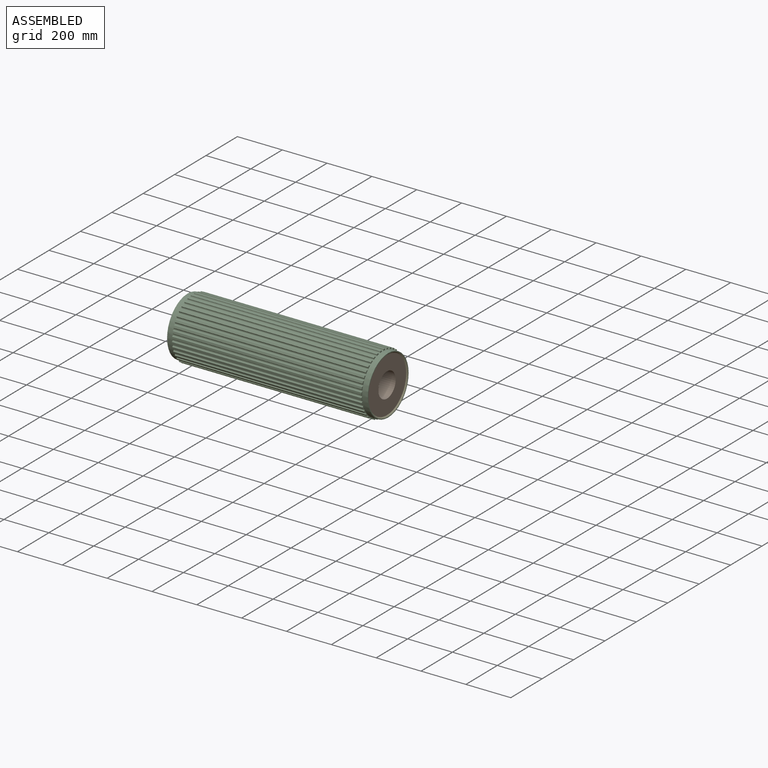
[diagram: assembled view]
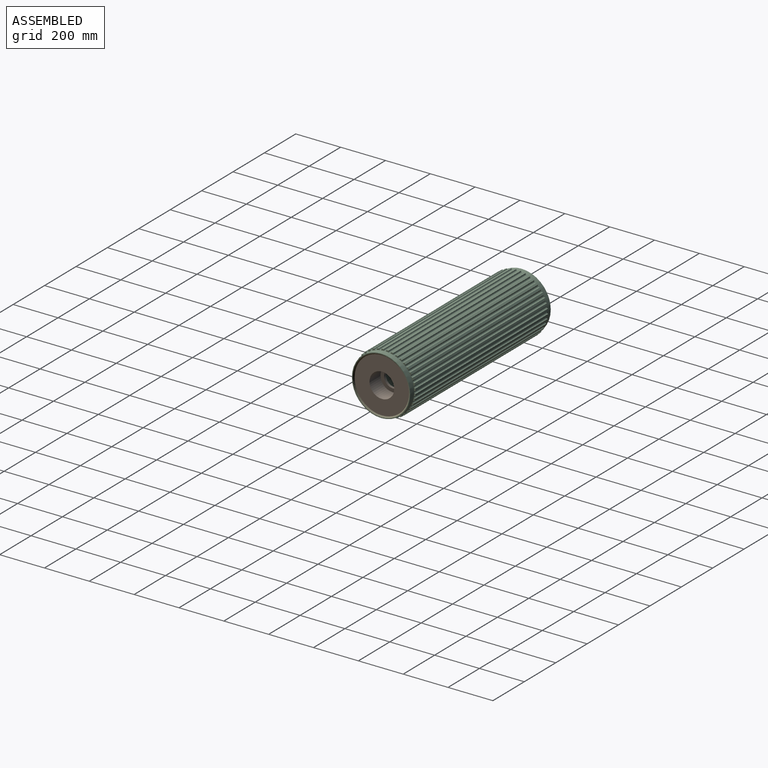
[diagram: assembled view, second angle]
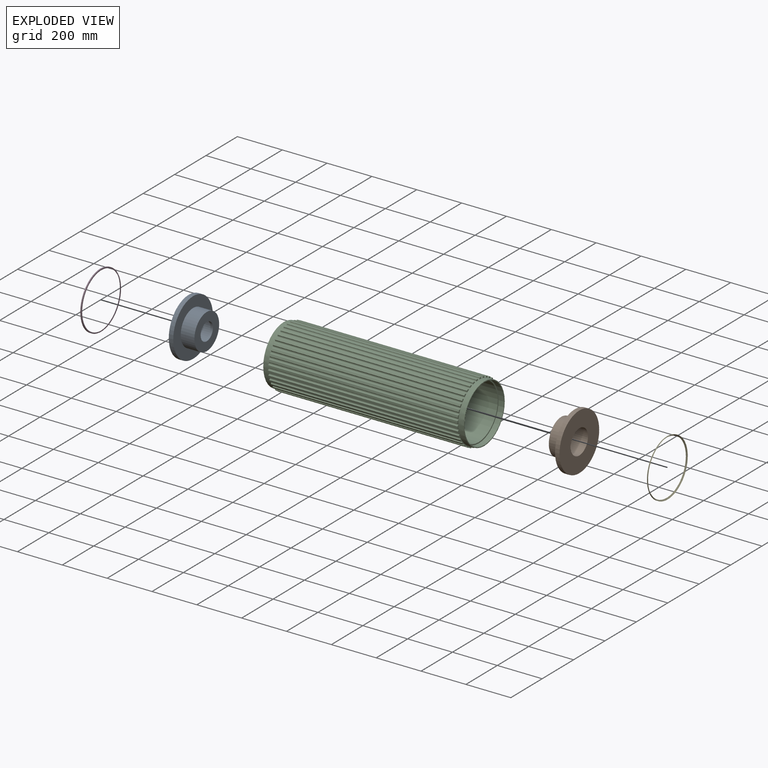
[diagram: exploded view]
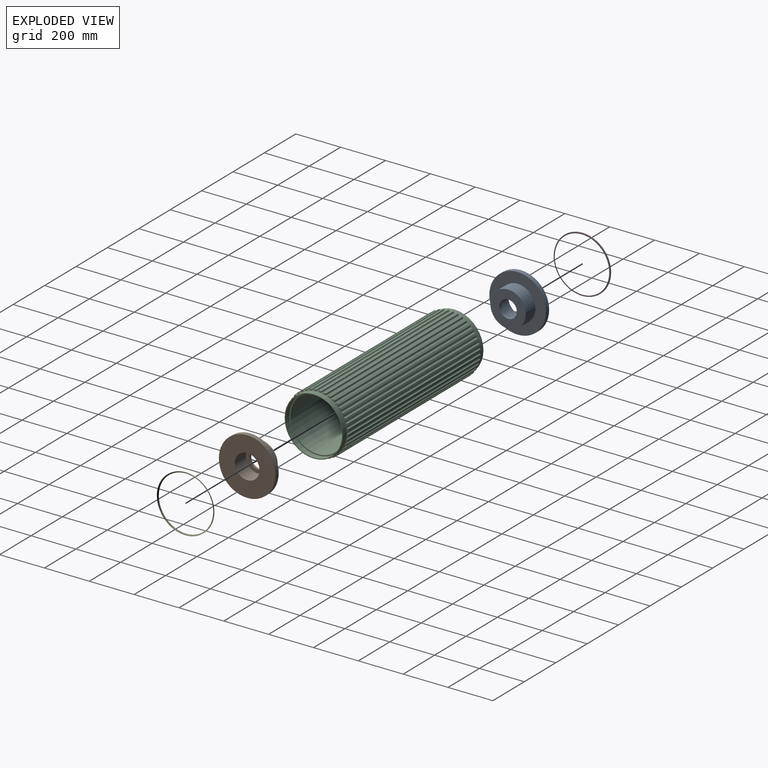
[diagram: exploded view, second angle]
ASSEMBLY  parts=5 mates=4
PART A: 8 faces, bbox 81x252.8x252.8 mm
  f0: cylinder r=55mm len=110mm, axis (1,0,0), area 24190.3mm2, adj f3,f5
  f1: cylinder r=126.41mm len=252.82mm, axis (1,0,0), area 15885.1mm2, adj f2,f3
  f2: plane 252.82x252.82mm, normal (-1,0,0), area 30594.4mm2, adj f1,f4
  f3: plane 252.82x252.82mm, normal (1,0,0), area 40697.7mm2, adj f0,f1
  f4: cylinder r=79mm len=158mm, axis (1,0,0), area 30278.7mm2, adj f2,f7
  f5: plane 110x110mm, normal (1,0,0), area 4725mm2, adj f0,f6
  f6: cylinder r=39mm len=78mm, axis (1,0,0), area 2695.5mm2, adj f5,f7
  f7: plane 158x158mm, normal (-1,0,0), area 14828.3mm2, adj f4,f6
PART B: same geometry as A
PART C: 249 faces, bbox 895x272.7x272.7 mm
  f0: plane 252.82x252.82mm, normal (-1,0,0), area 3892.7mm2, adj f239,f246
  f1: plane 20.34x7.97mm, normal (-1,0,0), area 74mm2, adj f83,f84,f85,f86,f87,f247
  f2: plane 19.84x10.11mm, normal (-1,0,0), area 74mm2, adj f80,f81,f82,f83,f240,f247
  f3: plane 18.85x12mm, normal (-1,0,0), area 74mm2, adj f235,f236,f237,f238,f240,f247
  f4: plane 17.39x13.6mm, normal (-1,0,0), area 74mm2, adj f231,f232,f233,f234,f235,f247
  f5: plane 15.76x14.86mm, normal (-1,0,0), area 74mm2, adj f227,f228,f229,f230,f231,f247
  f6: plane 15.76x14.86mm, normal (-1,0,0), area 74mm2, adj f223,f224,f225,f226,f227,f247
  f7: plane 17.39x13.6mm, normal (-1,0,0), area 74mm2, adj f219,f220,f221,f222,f223,f247
  f8: plane 18.85x12mm, normal (-1,0,0), area 74mm2, adj f215,f216,f217,f218,f219,f247
  f9: plane 19.84x10.11mm, normal (-1,0,0), area 74mm2, adj f211,f212,f213,f214,f215,f247
  f10: plane 20.34x7.97mm, normal (-1,0,0), area 74mm2, adj f207,f208,f209,f210,f211,f247
  f11: plane 20.34x7.97mm, normal (-1,0,0), area 74mm2, adj f203,f204,f205,f206,f207,f247
  f12: plane 19.84x10.11mm, normal (-1,0,0), area 74mm2, adj f199,f200,f201,f202,f203,f247
  f13: plane 18.85x12mm, normal (-1,0,0), area 74mm2, adj f195,f196,f197,f198,f199,f247
  f14: plane 17.39x13.6mm, normal (-1,0,0), area 74mm2, adj f191,f192,f193,f194,f195,f247
  f15: plane 15.76x14.86mm, normal (-1,0,0), area 74mm2, adj f187,f188,f189,f190,f191,f247
  f16: plane 15.76x14.86mm, normal (-1,0,0), area 74mm2, adj f183,f184,f185,f186,f187,f247
  f17: plane 17.39x13.6mm, normal (-1,0,0), area 74mm2, adj f179,f180,f181,f182,f183,f247
  f18: plane 18.85x12mm, normal (-1,0,0), area 74mm2, adj f175,f176,f177,f178,f179,f247
  f19: plane 19.84x10.11mm, normal (-1,0,0), area 74mm2, adj f171,f172,f173,f174,f175,f247
  f20: plane 20.34x7.97mm, normal (-1,0,0), area 74mm2, adj f167,f168,f169,f170,f171,f247
  f21: plane 20.34x7.97mm, normal (-1,0,0), area 74mm2, adj f163,f164,f165,f166,f167,f247
  f22: plane 19.84x10.11mm, normal (-1,0,0), area 74mm2, adj f159,f160,f161,f162,f163,f247
  f23: plane 18.85x12mm, normal (-1,0,0), area 74mm2, adj f155,f156,f157,f158,f159,f247
  f24: plane 17.39x13.6mm, normal (-1,0,0), area 74mm2, adj f151,f152,f153,f154,f155,f247
  f25: plane 15.76x14.86mm, normal (-1,0,0), area 74mm2, adj f147,f148,f149,f150,f151,f247
  f26: plane 15.76x14.86mm, normal (-1,0,0), area 74mm2, adj f143,f144,f145,f146,f147,f247
  f27: plane 17.39x13.6mm, normal (-1,0,0), area 74mm2, adj f139,f140,f141,f142,f143,f247
  f28: plane 18.85x12mm, normal (-1,0,0), area 74mm2, adj f135,f136,f137,f138,f139,f247
  f29: plane 19.84x10.11mm, normal (-1,0,0), area 74mm2, adj f131,f132,f133,f134,f135,f247
  f30: plane 20.34x7.97mm, normal (-1,0,0), area 74mm2, adj f127,f128,f129,f130,f131,f247
  f31: plane 20.34x7.97mm, normal (-1,0,0), area 74mm2, adj f123,f124,f125,f126,f127,f247
  f32: plane 19.84x10.11mm, normal (-1,0,0), area 74mm2, adj f119,f120,f121,f122,f123,f247
  f33: plane 18.85x12mm, normal (-1,0,0), area 74mm2, adj f115,f116,f117,f118,f119,f247
  f34: plane 17.39x13.6mm, normal (-1,0,0), area 74mm2, adj f111,f112,f113,f114,f115,f247
  f35: plane 15.76x14.86mm, normal (-1,0,0), area 74mm2, adj f107,f108,f109,f110,f111,f247
  f36: plane 15.76x14.86mm, normal (-1,0,0), area 74mm2, adj f103,f104,f105,f106,f107,f247
  f37: plane 17.39x13.6mm, normal (-1,0,0), area 74mm2, adj f99,f100,f101,f102,f103,f247
  f38: plane 18.85x12mm, normal (-1,0,0), area 74mm2, adj f95,f96,f97,f98,f99,f247
  f39: plane 19.84x10.11mm, normal (-1,0,0), area 74mm2, adj f91,f92,f93,f94,f95,f247
  f40: plane 252.82x252.82mm, normal (1,0,0), area 3892.7mm2, adj f239,f243
  f41: plane 20.34x7.97mm, normal (1,0,0), area 74mm2, adj f83,f84,f85,f86,f87,f244
  f42: plane 19.84x10.11mm, normal (1,0,0), area 74mm2, adj f80,f81,f82,f83,f240,f244
  f43: plane 18.85x12mm, normal (1,0,0), area 74mm2, adj f235,f236,f237,f238,f240,f244
  f44: plane 17.39x13.6mm, normal (1,0,0), area 74mm2, adj f231,f232,f233,f234,f235,f244
  f45: plane 15.76x14.86mm, normal (1,0,0), area 74mm2, adj f227,f228,f229,f230,f231,f244
  f46: plane 15.76x14.86mm, normal (1,0,0), area 74mm2, adj f223,f224,f225,f226,f227,f244
  f47: plane 17.39x13.6mm, normal (1,0,0), area 74mm2, adj f219,f220,f221,f222,f223,f244
  f48: plane 18.85x12mm, normal (1,0,0), area 74mm2, adj f215,f216,f217,f218,f219,f244
  f49: plane 19.84x10.11mm, normal (1,0,0), area 74mm2, adj f211,f212,f213,f214,f215,f244
  f50: plane 20.34x7.97mm, normal (1,0,0), area 74mm2, adj f207,f208,f209,f210,f211,f244
  f51: plane 20.34x7.97mm, normal (1,0,0), area 74mm2, adj f203,f204,f205,f206,f207,f244
  f52: plane 19.84x10.11mm, normal (1,0,0), area 74mm2, adj f199,f200,f201,f202,f203,f244
  f53: plane 18.85x12mm, normal (1,0,0), area 74mm2, adj f195,f196,f197,f198,f199,f244
  f54: plane 17.39x13.6mm, normal (1,0,0), area 74mm2, adj f191,f192,f193,f194,f195,f244
  f55: plane 15.76x14.86mm, normal (1,0,0), area 74mm2, adj f187,f188,f189,f190,f191,f244
  f56: plane 15.76x14.86mm, normal (1,0,0), area 74mm2, adj f183,f184,f185,f186,f187,f244
  f57: plane 17.39x13.6mm, normal (1,0,0), area 74mm2, adj f179,f180,f181,f182,f183,f244
  f58: plane 18.85x12mm, normal (1,0,0), area 74mm2, adj f175,f176,f177,f178,f179,f244
  f59: plane 19.84x10.11mm, normal (1,0,0), area 74mm2, adj f171,f172,f173,f174,f175,f244
  f60: plane 20.34x7.97mm, normal (1,0,0), area 74mm2, adj f167,f168,f169,f170,f171,f244
  f61: plane 20.34x7.97mm, normal (1,0,0), area 74mm2, adj f163,f164,f165,f166,f167,f244
  f62: plane 19.84x10.11mm, normal (1,0,0), area 74mm2, adj f159,f160,f161,f162,f163,f244
  f63: plane 18.85x12mm, normal (1,0,0), area 74mm2, adj f155,f156,f157,f158,f159,f244
  f64: plane 17.39x13.6mm, normal (1,0,0), area 74mm2, adj f151,f152,f153,f154,f155,f244
  f65: plane 15.76x14.86mm, normal (1,0,0), area 74mm2, adj f147,f148,f149,f150,f151,f244
  f66: plane 15.76x14.86mm, normal (1,0,0), area 74mm2, adj f143,f144,f145,f146,f147,f244
  f67: plane 17.39x13.6mm, normal (1,0,0), area 74mm2, adj f139,f140,f141,f142,f143,f244
  f68: plane 18.85x12mm, normal (1,0,0), area 74mm2, adj f135,f136,f137,f138,f139,f244
  f69: plane 19.84x10.11mm, normal (1,0,0), area 74mm2, adj f131,f132,f133,f134,f135,f244
  f70: plane 20.34x7.97mm, normal (1,0,0), area 74mm2, adj f127,f128,f129,f130,f131,f244
  f71: plane 20.34x7.97mm, normal (1,0,0), area 74mm2, adj f123,f124,f125,f126,f127,f244
  f72: plane 19.84x10.11mm, normal (1,0,0), area 74mm2, adj f119,f120,f121,f122,f123,f244
  f73: plane 18.85x12mm, normal (1,0,0), area 74mm2, adj f115,f116,f117,f118,f119,f244
  f74: plane 17.39x13.6mm, normal (1,0,0), area 74mm2, adj f111,f112,f113,f114,f115,f244
  f75: plane 15.76x14.86mm, normal (1,0,0), area 74mm2, adj f107,f108,f109,f110,f111,f244
  f76: plane 15.76x14.86mm, normal (1,0,0), area 74mm2, adj f103,f104,f105,f106,f107,f244
  f77: plane 17.39x13.6mm, normal (1,0,0), area 74mm2, adj f99,f100,f101,f102,f103,f244
  f78: plane 18.85x12mm, normal (1,0,0), area 74mm2, adj f95,f96,f97,f98,f99,f244
  f79: plane 19.84x10.11mm, normal (1,0,0), area 74mm2, adj f91,f92,f93,f94,f95,f244
  f80: plane 845x0.36mm, normal (0,-0.96,0.27), area 314.2mm2, adj f2,f42,f81,f240
  f81: cylinder r=136.5mm len=845mm, axis (-1,0,0), area 7947mm2, adj f2,f42,f80,f82
  f82: plane 845x0.36mm, normal (0,0.98,-0.2), area 314.2mm2, adj f2,f42,f81,f83
  f83: cylinder r=6mm len=845mm, axis (-1,0,0), area 15920.9mm2, adj f1,f2,f41,f42,f82,f84
  f84: plane 845x0.37mm, normal (0,-0.99,0.11), area 314.2mm2, adj f1,f41,f83,f85
  f85: cylinder r=136.5mm len=845mm, axis (-1,0,0), area 7947mm2, adj f1,f41,f84,f86
  f86: plane 845x0.37mm, normal (0,1,-0.04), area 314.2mm2, adj f1,f41,f85,f87
  f87: cylinder r=6mm len=845mm, axis (-1,0,0), area 15920.9mm2, adj f1,f41,f86,f88,f241,f242
  f88: plane 845x0.37mm, normal (0,-1,-0.04), area 314.2mm2, adj f87,f89,f241,f242
  f89: cylinder r=136.5mm len=845mm, axis (-1,0,0), area 7947mm2, adj f88,f90,f241,f242
  f90: plane 845x0.37mm, normal (0,0.99,0.11), area 314.2mm2, adj f89,f91,f241,f242
  f91: cylinder r=6mm len=845mm, axis (-1,0,0), area 15920.9mm2, adj f39,f79,f90,f92,f241,f242
  f92: plane 845x0.36mm, normal (0,-0.98,-0.2), area 314.2mm2, adj f39,f79,f91,f93
  f93: cylinder r=136.5mm len=845mm, axis (-1,0,0), area 7947mm2, adj f39,f79,f92,f94
  f94: plane 845x0.36mm, normal (0,0.96,0.27), area 314.2mm2, adj f39,f79,f93,f95
  f95: cylinder r=6mm len=845mm, axis (-1,0,0), area 15920.9mm2, adj f38,f39,f78,f79,f94,f96
  f96: plane 845x0.35mm, normal (0,-0.94,-0.35), area 314.2mm2, adj f38,f78,f95,f97
  f97: cylinder r=136.5mm len=845mm, axis (-1,0,0), area 7947mm2, adj f38,f78,f96,f98
  f98: plane 845x0.34mm, normal (0,0.91,0.41), area 314.2mm2, adj f38,f78,f97,f99
  f99: cylinder r=6mm len=845mm, axis (-1,0,0), area 15920.9mm2, adj f37,f38,f77,f78,f98,f100
  f100: plane 845x0.32mm, normal (0,-0.87,-0.49), area 314.2mm2, adj f37,f77,f99,f101
  f101: cylinder r=136.5mm len=845mm, axis (-1,0,0), area 7947mm2, adj f37,f77,f100,f102
  f102: plane 845x0.31mm, normal (0,0.83,0.55), area 314.2mm2, adj f37,f77,f101,f103
  f103: cylinder r=6mm len=845mm, axis (-1,0,0), area 15920.9mm2, adj f36,f37,f76,f77,f102,f104
  f104: plane 845x0.29mm, normal (0,-0.78,-0.62), area 314.2mm2, adj f36,f76,f103,f105
  f105: cylinder r=136.5mm len=845mm, axis (-1,0,0), area 7947mm2, adj f36,f76,f104,f106
  f106: plane 845x0.27mm, normal (0,0.74,0.68), area 314.2mm2, adj f36,f76,f105,f107
  f107: cylinder r=6mm len=845mm, axis (-1,0,0), area 15920.9mm2, adj f35,f36,f75,f76,f106,f108
  f108: plane 845x0.27mm, normal (0,-0.68,-0.74), area 314.2mm2, adj f35,f75,f107,f109
  f109: cylinder r=136.5mm len=845mm, axis (-1,0,0), area 7947mm2, adj f35,f75,f108,f110
  f110: plane 845x0.29mm, normal (0,0.62,0.78), area 314.2mm2, adj f35,f75,f109,f111
  f111: cylinder r=6mm len=845mm, axis (-1,0,0), area 15920.9mm2, adj f34,f35,f74,f75,f110,f112
  f112: plane 845x0.31mm, normal (0,-0.55,-0.83), area 314.2mm2, adj f34,f74,f111,f113
  f113: cylinder r=136.5mm len=845mm, axis (-1,0,0), area 7947mm2, adj f34,f74,f112,f114
  f114: plane 845x0.32mm, normal (0,0.49,0.87), area 314.2mm2, adj f34,f74,f113,f115
  f115: cylinder r=6mm len=845mm, axis (-1,0,0), area 15920.9mm2, adj f33,f34,f73,f74,f114,f116
  f116: plane 845x0.34mm, normal (0,-0.41,-0.91), area 314.2mm2, adj f33,f73,f115,f117
  f117: cylinder r=136.5mm len=845mm, axis (-1,0,0), area 7947mm2, adj f33,f73,f116,f118
  f118: plane 845x0.35mm, normal (0,0.35,0.94), area 314.2mm2, adj f33,f73,f117,f119
  f119: cylinder r=6mm len=845mm, axis (-1,0,0), area 15920.9mm2, adj f32,f33,f72,f73,f118,f120
  f120: plane 845x0.36mm, normal (0,-0.27,-0.96), area 314.2mm2, adj f32,f72,f119,f121
  f121: cylinder r=136.5mm len=845mm, axis (-1,0,0), area 7947mm2, adj f32,f72,f120,f122
  f122: plane 845x0.36mm, normal (0,0.2,0.98), area 314.2mm2, adj f32,f72,f121,f123
  f123: cylinder r=6mm len=845mm, axis (-1,0,0), area 15920.9mm2, adj f31,f32,f71,f72,f122,f124
  f124: plane 845x0.37mm, normal (0,-0.11,-0.99), area 314.2mm2, adj f31,f71,f123,f125
  f125: cylinder r=136.5mm len=845mm, axis (-1,0,0), area 7947mm2, adj f31,f71,f124,f126
  f126: plane 845x0.37mm, normal (0,0.04,1), area 314.2mm2, adj f31,f71,f125,f127
  f127: cylinder r=6mm len=845mm, axis (-1,0,0), area 15920.9mm2, adj f30,f31,f70,f71,f126,f128
  f128: plane 845x0.37mm, normal (0,0.04,-1), area 314.2mm2, adj f30,f70,f127,f129
  f129: cylinder r=136.5mm len=845mm, axis (-1,0,0), area 7947mm2, adj f30,f70,f128,f130
  f130: plane 845x0.37mm, normal (0,-0.11,0.99), area 314.2mm2, adj f30,f70,f129,f131
  f131: cylinder r=6mm len=845mm, axis (-1,0,0), area 15920.9mm2, adj f29,f30,f69,f70,f130,f132
  f132: plane 845x0.36mm, normal (0,0.2,-0.98), area 314.2mm2, adj f29,f69,f131,f133
  f133: cylinder r=136.5mm len=845mm, axis (-1,0,0), area 7947mm2, adj f29,f69,f132,f134
  f134: plane 845x0.36mm, normal (0,-0.27,0.96), area 314.2mm2, adj f29,f69,f133,f135
  f135: cylinder r=6mm len=845mm, axis (-1,0,0), area 15920.9mm2, adj f28,f29,f68,f69,f134,f136
  f136: plane 845x0.35mm, normal (0,0.35,-0.94), area 314.2mm2, adj f28,f68,f135,f137
  f137: cylinder r=136.5mm len=845mm, axis (-1,0,0), area 7947mm2, adj f28,f68,f136,f138
  f138: plane 845x0.34mm, normal (0,-0.41,0.91), area 314.2mm2, adj f28,f68,f137,f139
  f139: cylinder r=6mm len=845mm, axis (-1,0,0), area 15920.9mm2, adj f27,f28,f67,f68,f138,f140
  f140: plane 845x0.32mm, normal (0,0.49,-0.87), area 314.2mm2, adj f27,f67,f139,f141
  f141: cylinder r=136.5mm len=845mm, axis (-1,0,0), area 7947mm2, adj f27,f67,f140,f142
  f142: plane 845x0.31mm, normal (0,-0.55,0.83), area 314.2mm2, adj f27,f67,f141,f143
  f143: cylinder r=6mm len=845mm, axis (-1,0,0), area 15920.9mm2, adj f26,f27,f66,f67,f142,f144
  f144: plane 845x0.29mm, normal (0,0.62,-0.78), area 314.2mm2, adj f26,f66,f143,f145
  f145: cylinder r=136.5mm len=845mm, axis (-1,0,0), area 7947mm2, adj f26,f66,f144,f146
  f146: plane 845x0.27mm, normal (0,-0.68,0.74), area 314.2mm2, adj f26,f66,f145,f147
  f147: cylinder r=6mm len=845mm, axis (-1,0,0), area 15920.9mm2, adj f25,f26,f65,f66,f146,f148
  f148: plane 845x0.27mm, normal (0,0.74,-0.68), area 314.2mm2, adj f25,f65,f147,f149
  f149: cylinder r=136.5mm len=845mm, axis (-1,0,0), area 7947mm2, adj f25,f65,f148,f150
  f150: plane 845x0.29mm, normal (0,-0.78,0.62), area 314.2mm2, adj f25,f65,f149,f151
  f151: cylinder r=6mm len=845mm, axis (-1,0,0), area 15920.9mm2, adj f24,f25,f64,f65,f150,f152
  f152: plane 845x0.31mm, normal (0,0.83,-0.55), area 314.2mm2, adj f24,f64,f151,f153
  f153: cylinder r=136.5mm len=845mm, axis (-1,0,0), area 7947mm2, adj f24,f64,f152,f154
  f154: plane 845x0.32mm, normal (0,-0.87,0.49), area 314.2mm2, adj f24,f64,f153,f155
  f155: cylinder r=6mm len=845mm, axis (-1,0,0), area 15920.9mm2, adj f23,f24,f63,f64,f154,f156
  f156: plane 845x0.34mm, normal (0,0.91,-0.41), area 314.2mm2, adj f23,f63,f155,f157
  f157: cylinder r=136.5mm len=845mm, axis (-1,0,0), area 7947mm2, adj f23,f63,f156,f158
  f158: plane 845x0.35mm, normal (0,-0.94,0.35), area 314.2mm2, adj f23,f63,f157,f159
  f159: cylinder r=6mm len=845mm, axis (-1,0,0), area 15920.9mm2, adj f22,f23,f62,f63,f158,f160
  f160: plane 845x0.36mm, normal (0,0.96,-0.27), area 314.2mm2, adj f22,f62,f159,f161
  f161: cylinder r=136.5mm len=845mm, axis (-1,0,0), area 7947mm2, adj f22,f62,f160,f162
  f162: plane 845x0.36mm, normal (0,-0.98,0.2), area 314.2mm2, adj f22,f62,f161,f163
  f163: cylinder r=6mm len=845mm, axis (-1,0,0), area 15920.9mm2, adj f21,f22,f61,f62,f162,f164
  f164: plane 845x0.37mm, normal (0,0.99,-0.11), area 314.2mm2, adj f21,f61,f163,f165
  f165: cylinder r=136.5mm len=845mm, axis (-1,0,0), area 7947mm2, adj f21,f61,f164,f166
  f166: plane 845x0.37mm, normal (0,-1,0.04), area 314.2mm2, adj f21,f61,f165,f167
  f167: cylinder r=6mm len=845mm, axis (-1,0,0), area 15920.9mm2, adj f20,f21,f60,f61,f166,f168
  f168: plane 845x0.37mm, normal (0,1,0.04), area 314.2mm2, adj f20,f60,f167,f169
  f169: cylinder r=136.5mm len=845mm, axis (-1,0,0), area 7947mm2, adj f20,f60,f168,f170
  f170: plane 845x0.37mm, normal (0,-0.99,-0.11), area 314.2mm2, adj f20,f60,f169,f171
  f171: cylinder r=6mm len=845mm, axis (-1,0,0), area 15920.9mm2, adj f19,f20,f59,f60,f170,f172
  f172: plane 845x0.36mm, normal (0,0.98,0.2), area 314.2mm2, adj f19,f59,f171,f173
  f173: cylinder r=136.5mm len=845mm, axis (-1,0,0), area 7947mm2, adj f19,f59,f172,f174
  f174: plane 845x0.36mm, normal (0,-0.96,-0.27), area 314.2mm2, adj f19,f59,f173,f175
  f175: cylinder r=6mm len=845mm, axis (-1,0,0), area 15920.9mm2, adj f18,f19,f58,f59,f174,f176
  f176: plane 845x0.35mm, normal (0,0.94,0.35), area 314.2mm2, adj f18,f58,f175,f177
  f177: cylinder r=136.5mm len=845mm, axis (-1,0,0), area 7947mm2, adj f18,f58,f176,f178
  f178: plane 845x0.34mm, normal (0,-0.91,-0.41), area 314.2mm2, adj f18,f58,f177,f179
  f179: cylinder r=6mm len=845mm, axis (-1,0,0), area 15920.9mm2, adj f17,f18,f57,f58,f178,f180
  f180: plane 845x0.32mm, normal (0,0.87,0.49), area 314.2mm2, adj f17,f57,f179,f181
  f181: cylinder r=136.5mm len=845mm, axis (-1,0,0), area 7947mm2, adj f17,f57,f180,f182
  f182: plane 845x0.31mm, normal (0,-0.83,-0.55), area 314.2mm2, adj f17,f57,f181,f183
  f183: cylinder r=6mm len=845mm, axis (-1,0,0), area 15920.9mm2, adj f16,f17,f56,f57,f182,f184
  f184: plane 845x0.29mm, normal (0,0.78,0.62), area 314.2mm2, adj f16,f56,f183,f185
  f185: cylinder r=136.5mm len=845mm, axis (-1,0,0), area 7947mm2, adj f16,f56,f184,f186
  f186: plane 845x0.27mm, normal (0,-0.74,-0.68), area 314.2mm2, adj f16,f56,f185,f187
  f187: cylinder r=6mm len=845mm, axis (-1,0,0), area 15920.9mm2, adj f15,f16,f55,f56,f186,f188
  f188: plane 845x0.27mm, normal (0,0.68,0.74), area 314.2mm2, adj f15,f55,f187,f189
  f189: cylinder r=136.5mm len=845mm, axis (-1,0,0), area 7947mm2, adj f15,f55,f188,f190
  f190: plane 845x0.29mm, normal (0,-0.62,-0.78), area 314.2mm2, adj f15,f55,f189,f191
  f191: cylinder r=6mm len=845mm, axis (-1,0,0), area 15920.9mm2, adj f14,f15,f54,f55,f190,f192
  f192: plane 845x0.31mm, normal (0,0.55,0.83), area 314.2mm2, adj f14,f54,f191,f193
  f193: cylinder r=136.5mm len=845mm, axis (-1,0,0), area 7947mm2, adj f14,f54,f192,f194
  f194: plane 845x0.32mm, normal (0,-0.49,-0.87), area 314.2mm2, adj f14,f54,f193,f195
  f195: cylinder r=6mm len=845mm, axis (-1,0,0), area 15920.9mm2, adj f13,f14,f53,f54,f194,f196
  f196: plane 845x0.34mm, normal (0,0.41,0.91), area 314.2mm2, adj f13,f53,f195,f197
  f197: cylinder r=136.5mm len=845mm, axis (-1,0,0), area 7947mm2, adj f13,f53,f196,f198
  f198: plane 845x0.35mm, normal (0,-0.35,-0.94), area 314.2mm2, adj f13,f53,f197,f199
  f199: cylinder r=6mm len=845mm, axis (-1,0,0), area 15920.9mm2, adj f12,f13,f52,f53,f198,f200
  f200: plane 845x0.36mm, normal (0,0.27,0.96), area 314.2mm2, adj f12,f52,f199,f201
  f201: cylinder r=136.5mm len=845mm, axis (-1,0,0), area 7947mm2, adj f12,f52,f200,f202
  f202: plane 845x0.36mm, normal (0,-0.2,-0.98), area 314.2mm2, adj f12,f52,f201,f203
  f203: cylinder r=6mm len=845mm, axis (-1,0,0), area 15920.9mm2, adj f11,f12,f51,f52,f202,f204
  f204: plane 845x0.37mm, normal (0,0.11,0.99), area 314.2mm2, adj f11,f51,f203,f205
  f205: cylinder r=136.5mm len=845mm, axis (-1,0,0), area 7947mm2, adj f11,f51,f204,f206
  f206: plane 845x0.37mm, normal (0,-0.04,-1), area 314.2mm2, adj f11,f51,f205,f207
  f207: cylinder r=6mm len=845mm, axis (-1,0,0), area 15920.9mm2, adj f10,f11,f50,f51,f206,f208
  f208: plane 845x0.37mm, normal (0,-0.04,1), area 314.2mm2, adj f10,f50,f207,f209
  f209: cylinder r=136.5mm len=845mm, axis (-1,0,0), area 7947mm2, adj f10,f50,f208,f210
  f210: plane 845x0.37mm, normal (0,0.11,-0.99), area 314.2mm2, adj f10,f50,f209,f211
  f211: cylinder r=6mm len=845mm, axis (-1,0,0), area 15920.9mm2, adj f9,f10,f49,f50,f210,f212
  f212: plane 845x0.36mm, normal (0,-0.2,0.98), area 314.2mm2, adj f9,f49,f211,f213
  f213: cylinder r=136.5mm len=845mm, axis (-1,0,0), area 7947mm2, adj f9,f49,f212,f214
  f214: plane 845x0.36mm, normal (0,0.27,-0.96), area 314.2mm2, adj f9,f49,f213,f215
  f215: cylinder r=6mm len=845mm, axis (-1,0,0), area 15920.9mm2, adj f8,f9,f48,f49,f214,f216
  f216: plane 845x0.35mm, normal (0,-0.35,0.94), area 314.2mm2, adj f8,f48,f215,f217
  f217: cylinder r=136.5mm len=845mm, axis (-1,0,0), area 7947mm2, adj f8,f48,f216,f218
  f218: plane 845x0.34mm, normal (0,0.41,-0.91), area 314.2mm2, adj f8,f48,f217,f219
  f219: cylinder r=6mm len=845mm, axis (-1,0,0), area 15920.9mm2, adj f7,f8,f47,f48,f218,f220
  f220: plane 845x0.32mm, normal (0,-0.49,0.87), area 314.2mm2, adj f7,f47,f219,f221
  f221: cylinder r=136.5mm len=845mm, axis (-1,0,0), area 7947mm2, adj f7,f47,f220,f222
  f222: plane 845x0.31mm, normal (0,0.55,-0.83), area 314.2mm2, adj f7,f47,f221,f223
  f223: cylinder r=6mm len=845mm, axis (-1,0,0), area 15920.9mm2, adj f6,f7,f46,f47,f222,f224
  f224: plane 845x0.29mm, normal (0,-0.62,0.78), area 314.2mm2, adj f6,f46,f223,f225
  f225: cylinder r=136.5mm len=845mm, axis (-1,0,0), area 7947mm2, adj f6,f46,f224,f226
  f226: plane 845x0.27mm, normal (0,0.68,-0.74), area 314.2mm2, adj f6,f46,f225,f227
  f227: cylinder r=6mm len=845mm, axis (-1,0,0), area 15920.9mm2, adj f5,f6,f45,f46,f226,f228
  f228: plane 845x0.27mm, normal (0,-0.74,0.68), area 314.2mm2, adj f5,f45,f227,f229
  f229: cylinder r=136.5mm len=845mm, axis (-1,0,0), area 7947mm2, adj f5,f45,f228,f230
  f230: plane 845x0.29mm, normal (0,0.78,-0.62), area 314.2mm2, adj f5,f45,f229,f231
  f231: cylinder r=6mm len=845mm, axis (-1,0,0), area 15920.9mm2, adj f4,f5,f44,f45,f230,f232
  f232: plane 845x0.31mm, normal (0,-0.83,0.55), area 314.2mm2, adj f4,f44,f231,f233
  f233: cylinder r=136.5mm len=845mm, axis (-1,0,0), area 7947mm2, adj f4,f44,f232,f234
  f234: plane 845x0.32mm, normal (0,0.87,-0.49), area 314.2mm2, adj f4,f44,f233,f235
  f235: cylinder r=6mm len=845mm, axis (-1,0,0), area 15920.9mm2, adj f3,f4,f43,f44,f234,f236
  f236: plane 845x0.34mm, normal (0,-0.91,0.41), area 314.2mm2, adj f3,f43,f235,f237
  f237: cylinder r=136.5mm len=845mm, axis (-1,0,0), area 7947mm2, adj f3,f43,f236,f238
  f238: plane 845x0.35mm, normal (0,0.94,-0.35), area 314.2mm2, adj f3,f43,f237,f240
  f239: cylinder r=121.41mm len=845mm, axis (-1,0,0), area 644601.1mm2, adj f0,f40
  f240: cylinder r=6mm len=845mm, axis (-1,0,0), area 15920.9mm2, adj f2,f3,f42,f43,f80,f238
  f241: plane 20.34x7.97mm, normal (1,0,0), area 74mm2, adj f87,f88,f89,f90,f91,f244
  f242: plane 20.34x7.97mm, normal (-1,0,0), area 74mm2, adj f87,f88,f89,f90,f91,f247
  f243: cylinder r=126.41mm len=252.82mm, axis (-1,0,0), area 19856.4mm2, adj f40,f245
  f244: cylinder r=130mm len=260mm, axis (-1,0,0), area 20420.4mm2, adj f41,f42,f43,f44,f45,f46,f47,f48
  f245: plane 260x260mm, normal (1,0,0), area 2891.9mm2, adj f243,f244
  f246: cylinder r=126.41mm len=252.82mm, axis (1,0,0), area 19856.4mm2, adj f0,f248
  f247: cylinder r=130mm len=260mm, axis (1,0,0), area 20420.4mm2, adj f1,f2,f3,f4,f5,f6,f7,f8
  f248: plane 260x260mm, normal (-1,0,0), area 2891.9mm2, adj f246,f247
PART D: 3 faces, bbox 5x252.8x252.8 mm
  f0: cone r=126.41mm half-angle=45deg, axis (1,0,0), area 5505.2mm2, adj f1,f2
  f1: cylinder r=126.41mm len=252.82mm, axis (-1,0,0), area 3971.3mm2, adj f0,f2
  f2: plane 252.82x252.82mm, normal (-1,0,0), area 3892.7mm2, adj f0,f1
PART E: same geometry as D
PLACE A rot(axis=(0,0,1),180deg) t=(-20,-109.94,-24.53)mm
PLACE B t=(865,-109.94,-24.53)mm
PLACE C at identity
PLACE D rot(axis=(0,0,1),180deg) t=(-45,-219.87,0)mm
PLACE E t=(890,0,0)mm
MATE parallel D.f0 <-> A.f0  axis (1,0,0) through (-20,-109.94,-24.53)mm
MATE parallel A.f1 <-> C.f81  axis (1,0,0) through (0,-109.94,-24.53)mm
MATE parallel B.f1 <-> C.f81  axis (-1,0,0) through (845,-109.94,-24.53)mm
MATE parallel E.f0 <-> B.f1  axis (-1,0,0) through (865,-109.94,-24.53)mm
